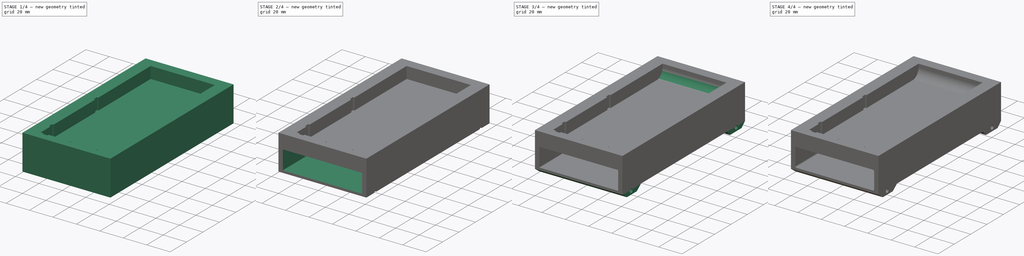
[diagram: build sequence overview — one tinted view per stage of 4, left to right]
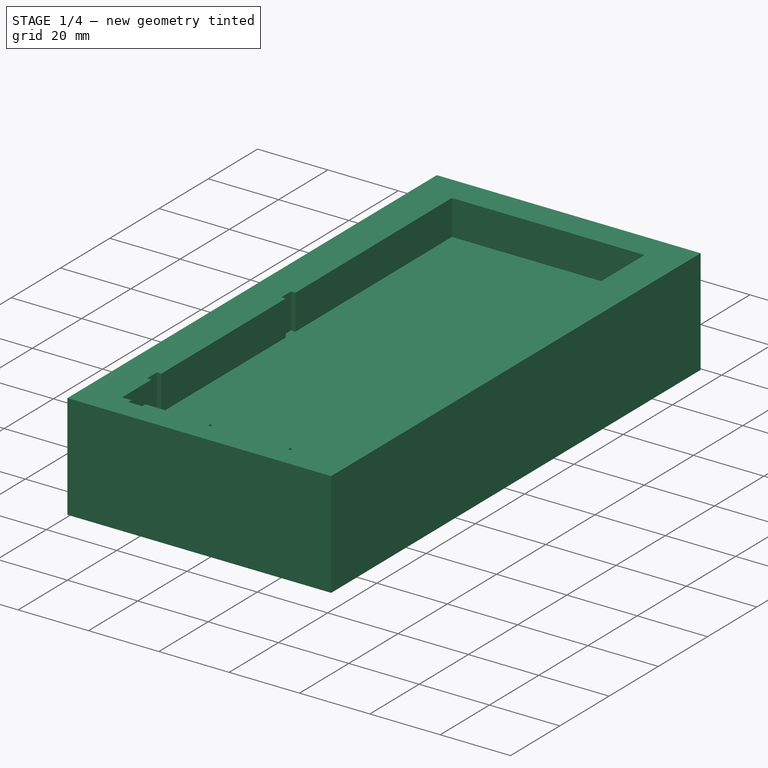
[diagram: stage 1 of 4 — iso view after this stage's code; geometry added in this stage tinted green]
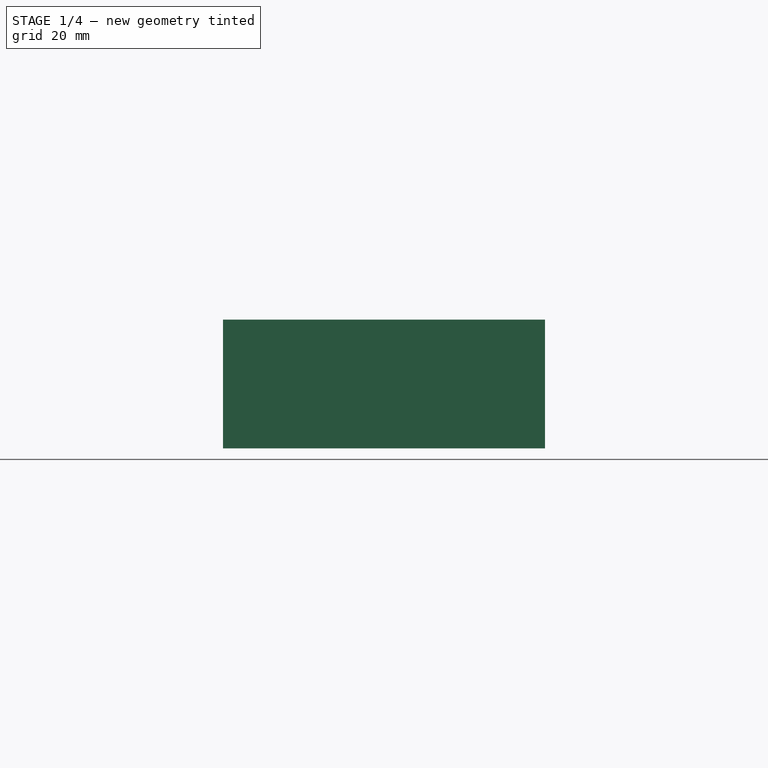
[diagram: stage 1 of 4 — front view after this stage's code; geometry added in this stage tinted green]
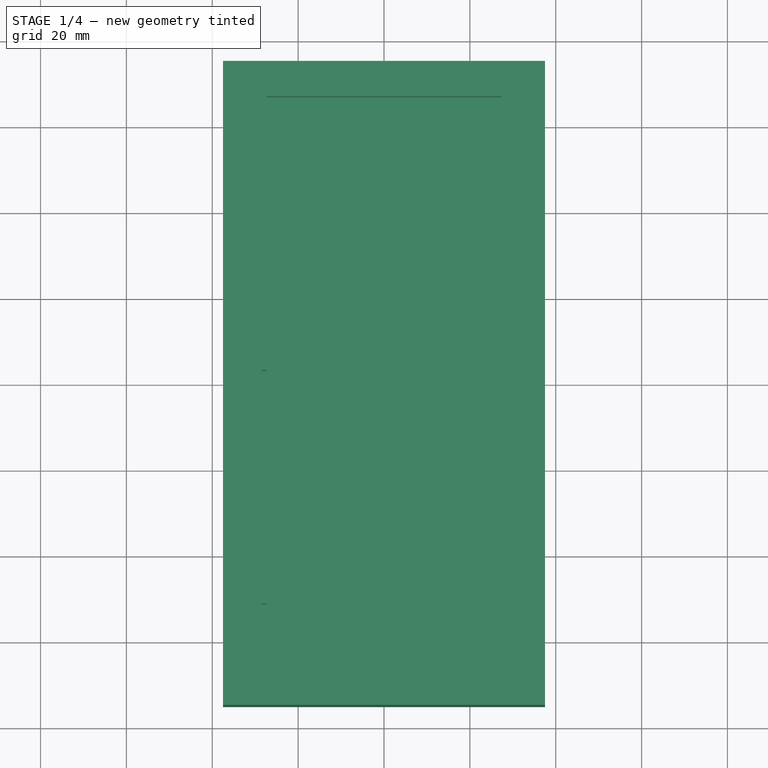
[diagram: stage 1 of 4 — top view after this stage's code; geometry added in this stage tinted green]
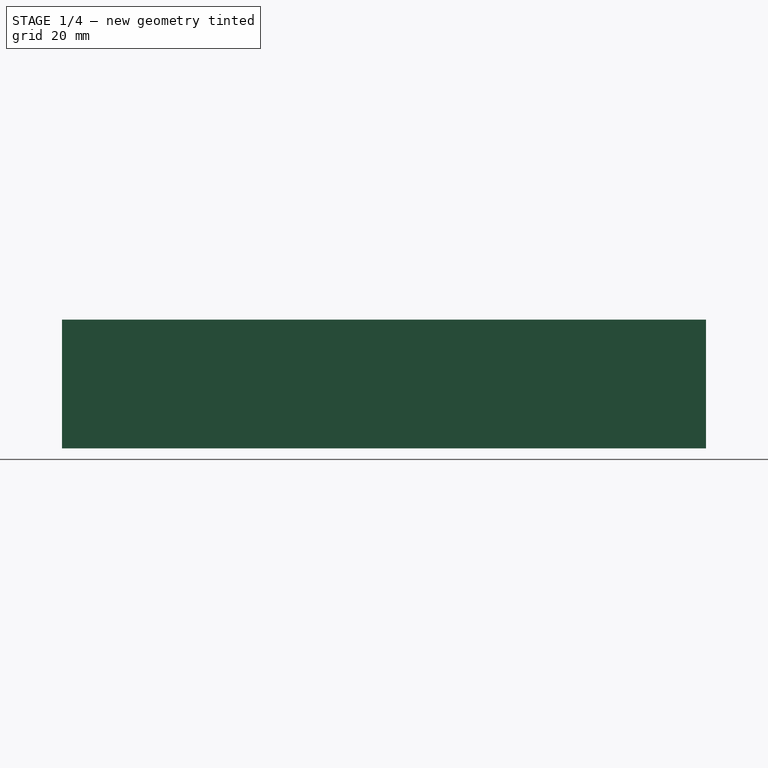
[diagram: stage 1 of 4 — right view after this stage's code; geometry added in this stage tinted green]
FCSTD DOCUMENT  (FreeCAD 0.20R29603 (Git))
Label: collision_cart
License: All rights reserved
LicenseURL: http://en.wikipedia.org/wiki/All_rights_reserved
objects: Sketcher::SketchObject×5, PartDesign::Pocket×4, TechDraw::DrawSVGTemplate×3, PartDesign::Fillet×3, TechDraw::DrawViewPart×3, TechDraw::DrawPage×3, PartDesign::Pad×2, PartDesign::Body×1, App::Part×1
note: 24 computed .brp shape members not serialized (recipe doc carries the construction recipe); baked Part::Feature solids carry a one-line shape summary decoded from their .brp

FEATURE [Sketcher::SketchObject] Sketch
  FullyConstrained = true
  MapMode = 5
  Support = -> [XY_Plane001]
  sketch-geometry (4):
    g0: LineSegment StartX=-37.5 StartY=75 StartZ=0 EndX=37.5 EndY=75 EndZ=0
    g1: LineSegment StartX=37.5 StartY=75 StartZ=0 EndX=37.5 EndY=-75 EndZ=0
    g2: LineSegment StartX=37.5 StartY=-75 StartZ=0 EndX=-37.5 EndY=-75 EndZ=0
    g3: LineSegment StartX=-37.5 StartY=-75 StartZ=0 EndX=-37.5 EndY=75 EndZ=0
  constraints (11):
    c: Coincident(g0,g1)
    c: Coincident(g1,g2)
    c: Coincident(g2,g3)
    c: Coincident(g3,g0)
    c: Horizontal(g0)
    c: Horizontal(g2)
    c: Vertical(g1)
    c: Vertical(g3)
    c: DistanceX(g0,g0) = 75
    c: DistanceY(g1,g1) = 150
    c: Symmetric(g2,g0,g-1)
FEATURE [PartDesign::Pad] Pad
  Direction = (0,0,1)
  Length = 30
  Length2 = 10
  Profile = -> Sketch
  ReferenceAxis = -> Sketch [N_Axis]
  Type = 0
FEATURE [Sketcher::SketchObject] Sketch001
  FullyConstrained = false
  MapMode = 5
  Placement = pos=(0,0,30) rot=(0,0,1;0rad)
  Support = -> [Pad]
  sketch-geometry (24):
    g0: LineSegment StartX=-27.4 StartY=66.7 StartZ=0 EndX=27.4 EndY=66.7 EndZ=0
    g1: LineSegment StartX=27.4 StartY=66.7 StartZ=0 EndX=27.4 EndY=-67.395 EndZ=0
    g2: LineSegment StartX=27.4 StartY=-67.395 StartZ=0 EndX=24.7 EndY=-67.395 EndZ=0
    g3: LineSegment StartX=-27.3 StartY=-67.395 StartZ=0 EndX=-27.3 EndY=-55.395 EndZ=0
    g4: LineSegment StartX=-20.7 StartY=-67.395 StartZ=0 EndX=-20.7 EndY=-68.645 EndZ=0
    g5: LineSegment StartX=-20.7 StartY=-68.645 StartZ=0 EndX=-24.6 EndY=-68.645 EndZ=0
    g6: LineSegment StartX=-24.6 StartY=-68.645 StartZ=0 EndX=-24.6 EndY=-67.395 EndZ=0
    g7: LineSegment StartX=1.95 StartY=-67.395 StartZ=0 EndX=1.95 EndY=-68.645 EndZ=0
    g8: LineSegment StartX=1.95 StartY=-68.645 StartZ=0 EndX=-1.95 EndY=-68.645 EndZ=0
    g9: LineSegment StartX=-1.95 StartY=-68.645 StartZ=0 EndX=-1.95 EndY=-67.395 EndZ=0
    g10: LineSegment StartX=24.7 StartY=-67.395 StartZ=0 EndX=24.7 EndY=-68.645 EndZ=0
    g11: LineSegment StartX=24.7 StartY=-68.645 StartZ=0 EndX=20.8 EndY=-68.645 EndZ=0
    g12: LineSegment StartX=20.8 StartY=-68.645 StartZ=0 EndX=20.8 EndY=-67.395 EndZ=0
    g13: LineSegment StartX=20.8 StartY=-67.395 StartZ=0 EndX=1.95 EndY=-67.395 EndZ=0
    g14: LineSegment StartX=-27.3 StartY=-67.395 StartZ=0 EndX=-24.6 EndY=-67.395 EndZ=0
    g15: LineSegment StartX=-20.7 StartY=-67.395 StartZ=0 EndX=-1.95 EndY=-67.395 EndZ=0
    g16: LineSegment StartX=-27.3 StartY=-55.395 StartZ=0 EndX=-28.55 EndY=-55.395 EndZ=0
    g17: LineSegment StartX=-28.55 StartY=-55.395 StartZ=0 EndX=-28.55 EndY=-51.495 EndZ=0
    g18: LineSegment StartX=-28.55 StartY=-51.495 StartZ=0 EndX=-27.3 EndY=-51.495 EndZ=0
    g19: LineSegment StartX=-27.3 StartY=-51.495 StartZ=0 EndX=-27.3 EndY=-0.89504 EndZ=0
    g20: LineSegment StartX=-27.3 StartY=-0.89504 StartZ=0 EndX=-28.55 EndY=-0.89504 EndZ=0
    g21: LineSegment StartX=-28.55 StartY=-0.89504 StartZ=0 EndX=-28.55 EndY=3.00496 EndZ=0
    g22: LineSegment StartX=-28.55 StartY=3.00496 StartZ=0 EndX=-27.3 EndY=3.00496 EndZ=0
    g23: LineSegment StartX=-27.3 StartY=3.00496 StartZ=0 EndX=-27.4 EndY=66.7 EndZ=0
  constraints (68):
    c: Coincident(g0,g1)
    c: Coincident(g1,g2)
    c: Horizontal(g2)
    c: Vertical(g1)
    c: Vertical(g3)
    c: DistanceX(g3,g2) = 54.7
    c: Coincident(g4,g5)
    c: Coincident(g5,g6)
    c: Horizontal(g5)
    c: Vertical(g4)
    c: Vertical(g6)
    c: Coincident(g7,g8)
    c: Coincident(g8,g9)
    c: Vertical(g7)
    c: Vertical(g9)
    c: Coincident(g10,g11)
    c: Coincident(g11,g12)
    c: Horizontal(g11)
    c: Vertical(g10)
    c: Vertical(g12)
    c: DistanceX(g5,g5) = 3.9
    c: DistanceX(g8,g8) = 3.9
    c: DistanceX(g11,g11) = 3.9
    c: Symmetric(g0,g0,g-2)
    c: DistanceY(g4,g4) = 1.25
    c: DistanceY(g7,g7) = 1.25
    c: DistanceY(g12,g12) = 1.25
    c: Symmetric(g8,g7,g-2)
    c: DistanceX(g3,g6) = 2.7
    c: DistanceX(g2,g2) = 2.7
    c: Coincident(g10,g2)
    c: Coincident(g13,g12)
    c: Horizontal(g13)
    c: Coincident(g14,g3)
    c: Coincident(g14,g6)
    c: Horizontal(g14)
    c: Coincident(g15,g4)
    c: Coincident(g15,g9)
    c: Horizontal(g15)
    c: Equal(g6,g4)
    c: Equal(g12,g10)
    c: Equal(g9,g7)
    c: Coincident(g7,g13)
    c: Coincident(g16,g17)
    c: Coincident(g17,g18)
    c: Horizontal(g16)
    c: Horizontal(g18)
    c: Vertical(g17)
    c: Coincident(g3,g16)
    c: DistanceX(g16,g16) = 1.25
    c: DistanceY(g17,g17) = 3.9
    c: DistanceX(g0,g0) = 54.8
    c: DistanceY(g3,g3) = 12
    c: Equal(g16,g18)
    c: Coincident(g19,g18)
    c: Vertical(g19)
    c: DistanceY(g19,g19) = 50.6
    c: Coincident(g20,g21)
    c: Coincident(g21,g22)
    c: Horizontal(g20)
    c: Horizontal(g22)
    c: Vertical(g21)
    c: Coincident(g20,g19)
    c: DistanceX(g20,g20) = 1.25
    c: DistanceY(g21,g21) = 3.9
    c: Equal(g20,g22)
    c: Coincident(g23,g22)
    c: Coincident(g23,g0)
FEATURE [PartDesign::Pocket] Pocket
  BaseFeature = -> Pad
  Direction = (0,0,-1)
  Length = 10
  Length2 = 5
  Profile = -> Sketch001
  ReferenceAxis = -> Sketch001 [N_Axis]
  Type = 0
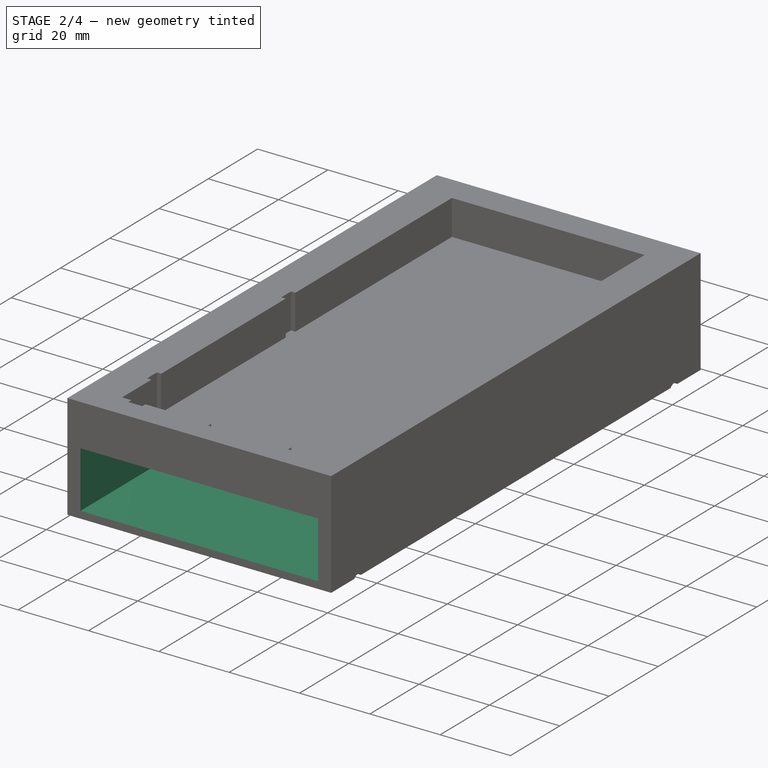
[diagram: stage 2 of 4 — iso view after this stage's code; geometry added in this stage tinted green]
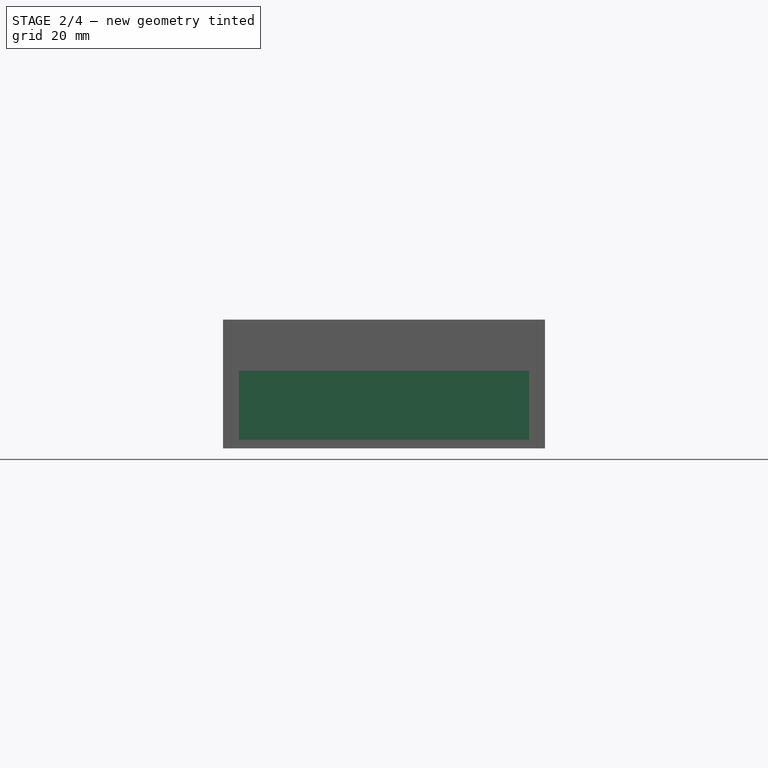
[diagram: stage 2 of 4 — front view after this stage's code; geometry added in this stage tinted green]
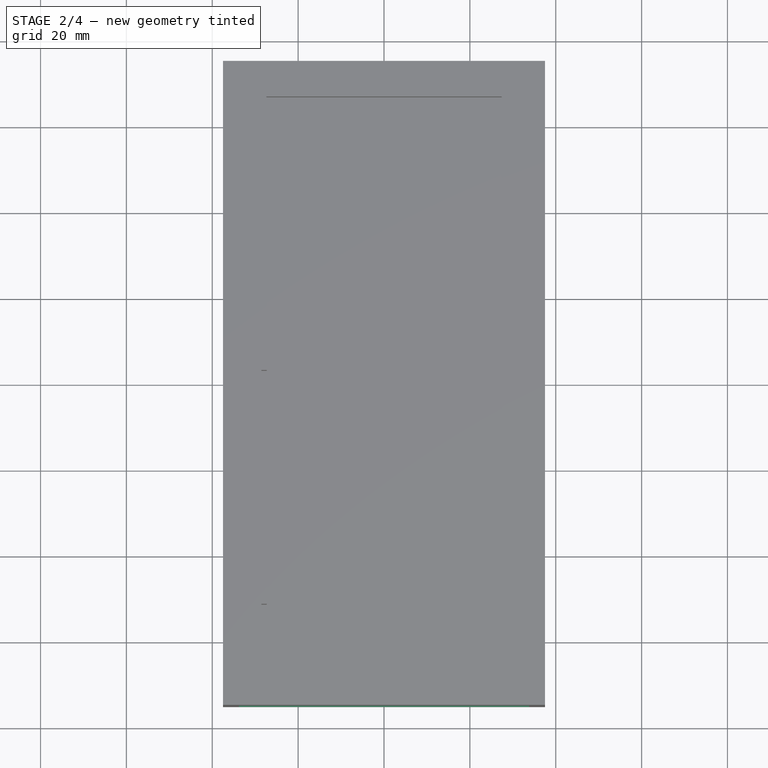
[diagram: stage 2 of 4 — top view after this stage's code; geometry added in this stage tinted green]
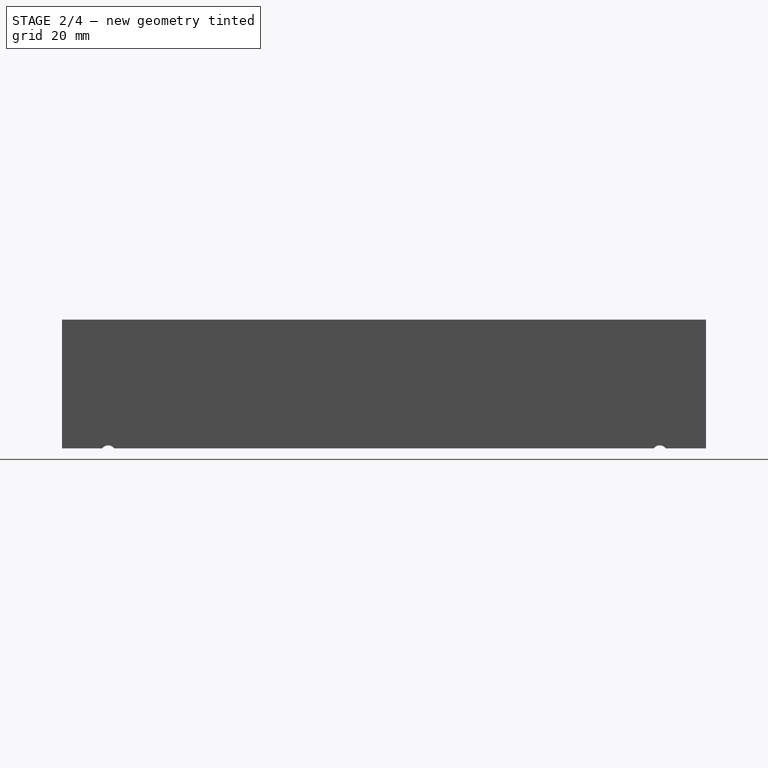
[diagram: stage 2 of 4 — right view after this stage's code; geometry added in this stage tinted green]
FEATURE [TechDraw::DrawSVGTemplate] Template
  Height = 297
  Orientation = 0
  Width = 210
FEATURE [TechDraw::DrawSVGTemplate] Template001
  Height = 297
  Orientation = 0
  Width = 210
FEATURE [TechDraw::DrawSVGTemplate] Template002
  Height = 215.9
  Orientation = 1
  Width = 279.4
FEATURE [Sketcher::SketchObject] Sketch002
  FullyConstrained = true
  MapMode = 5
  Placement = pos=(0,-75,0) rot=(1,0,0;1.5708rad)
  Support = -> [Pocket]
  sketch-geometry (4):
    g0: LineSegment StartX=-33.8 StartY=18.1 StartZ=0 EndX=33.8 EndY=18.1 EndZ=0
    g1: LineSegment StartX=33.8 StartY=18.1 StartZ=0 EndX=33.8 EndY=2 EndZ=0
    g2: LineSegment StartX=33.8 StartY=2 StartZ=0 EndX=-33.8 EndY=2 EndZ=0
    g3: LineSegment StartX=-33.8 StartY=2 StartZ=0 EndX=-33.8 EndY=18.1 EndZ=0
  constraints (11):
    c: Coincident(g0,g1)
    c: Coincident(g1,g2)
    c: Coincident(g2,g3)
    c: Coincident(g3,g0)
    c: Horizontal(g2)
    c: Vertical(g1)
    c: Vertical(g3)
    c: Symmetric(g0,g0,g-2)
    c: DistanceY(g1,g1) = 16.1
    c: DistanceY(g-1,g1) = 2
    c: DistanceX(g0,g0) = 67.6
FEATURE [PartDesign::Pocket] Pocket001
  BaseFeature = -> Pocket
  Direction = (0,1,-2e-16)
  Length = 138
  Length2 = 5
  Profile = -> Sketch002
  ReferenceAxis = -> Sketch002 [N_Axis]
  Type = 0
FEATURE [Sketcher::SketchObject] Sketch003
  FullyConstrained = false
  MapMode = 5
  Placement = pos=(37.5,0,0) rot=(0.57735,0.57735,0.57735;2.0944rad)
  Support = -> [Pocket001]
  sketch-geometry (2):
    g0: Circle CenterX=64.2402 CenterY=-1 CenterZ=0 NormalX=0 NormalY=0 NormalZ=1 AngleXU=0 Radius=1.7
    g1: Circle CenterX=-64.2402 CenterY=-1 CenterZ=0 NormalX=0 NormalY=0 NormalZ=1 AngleXU=0 Radius=1.7
  constraints (4):
    c: Diameter(g0) = 3.4
    c: Diameter(g1) = 3.4
    c: DistanceY(g-1,g0) = -1
    c: Symmetric(g1,g0,g-2)
FEATURE [PartDesign::Pocket] Pocket002
  BaseFeature = -> Pocket001
  Direction = (-1,0,0)
  Length = 200
  Length2 = 5
  Profile = -> Sketch003
  ReferenceAxis = -> Sketch003 [N_Axis]
  Type = 0
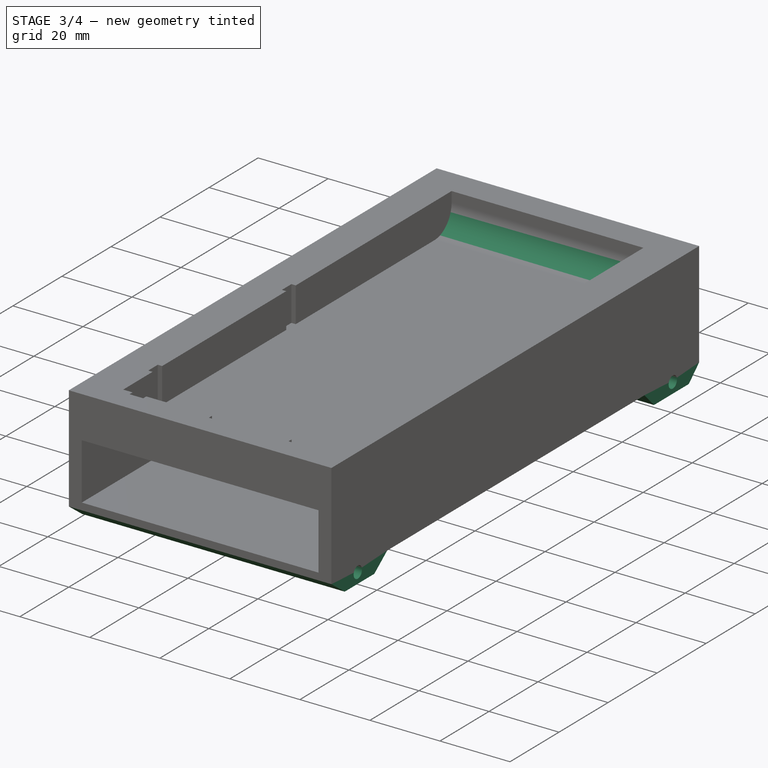
[diagram: stage 3 of 4 — iso view after this stage's code; geometry added in this stage tinted green]
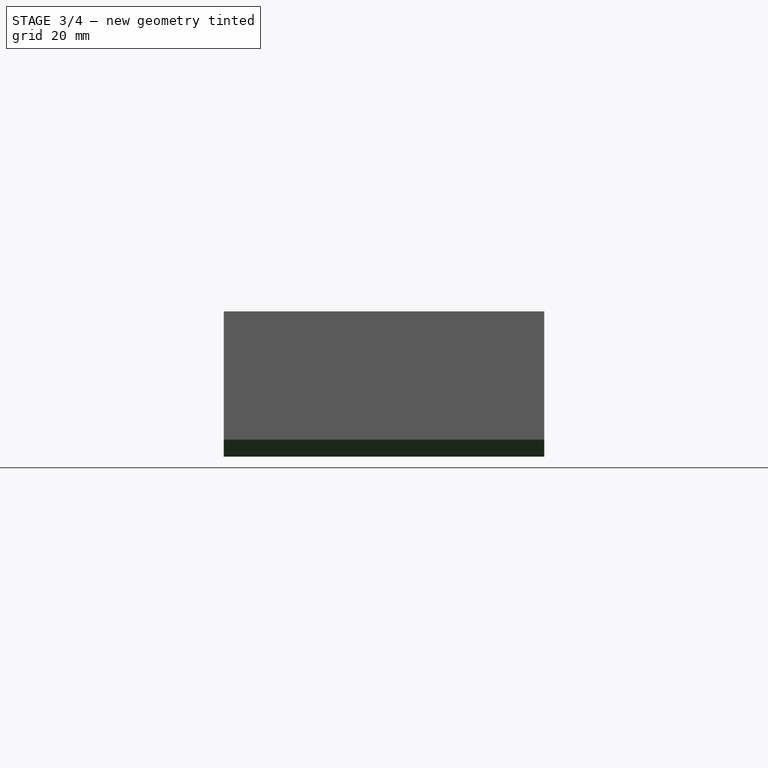
[diagram: stage 3 of 4 — front view after this stage's code; geometry added in this stage tinted green]
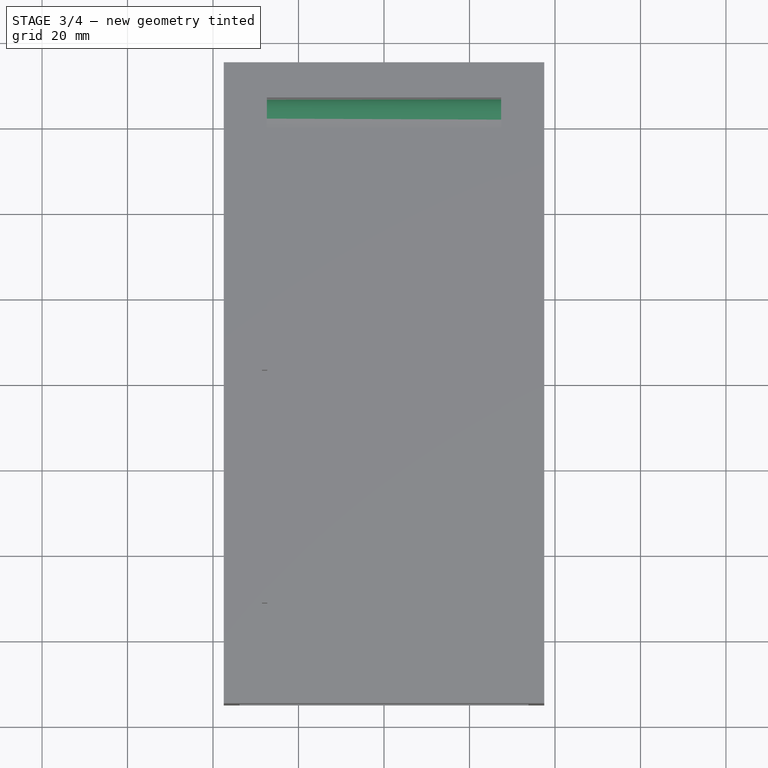
[diagram: stage 3 of 4 — top view after this stage's code; geometry added in this stage tinted green]
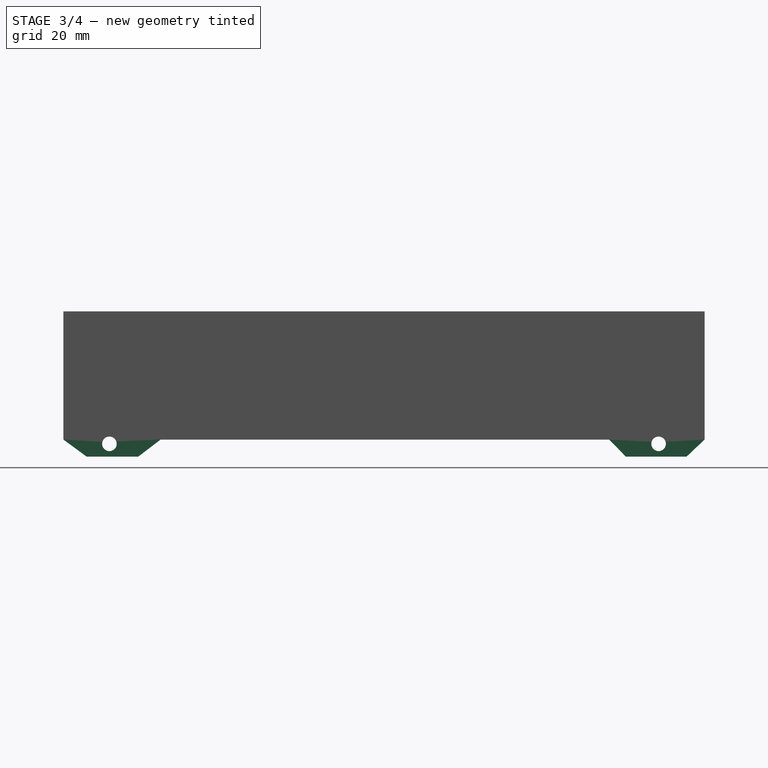
[diagram: stage 3 of 4 — right view after this stage's code; geometry added in this stage tinted green]
FEATURE [Sketcher::SketchObject] Sketch004
  ExternalGeometry = -> [Pocket002]
  FullyConstrained = false
  MapMode = 5
  Placement = pos=(37.5,0,0) rot=(0.57735,0.57735,0.57735;2.0944rad)
  Support = -> [Pocket002]
  sketch-geometry (8):
    g0: LineSegment StartX=-75 StartY=0 StartZ=0 EndX=-69.5643 EndY=-4 EndZ=0
    g1: LineSegment StartX=-69.5643 StartY=-4 StartZ=0 EndX=-57.5024 EndY=-4 EndZ=0
    g2: LineSegment StartX=-57.5024 StartY=-4 StartZ=0 EndX=-52.2646 EndY=-4e-16 EndZ=0
    g3: LineSegment StartX=-52.2646 StartY=-4e-16 StartZ=0 EndX=-75 EndY=0 EndZ=0
    g4: LineSegment StartX=75 StartY=0 StartZ=0 EndX=70.7702 EndY=-4 EndZ=0
    g5: LineSegment StartX=70.7702 StartY=-4 StartZ=0 EndX=56.5795 EndY=-4 EndZ=0
    g6: LineSegment StartX=56.5795 StartY=-4 StartZ=0 EndX=52.6816 EndY=0 EndZ=0
    g7: LineSegment StartX=52.6816 StartY=0 StartZ=0 EndX=75 EndY=0 EndZ=0
  constraints (16):
    c: Coincident(g0,g-4)
    c: Coincident(g0,g1)
    c: Horizontal(g1)
    c: Coincident(g1,g2)
    c: PointOnObject(g2,g-5)
    c: Coincident(g2,g3)
    c: Coincident(g3,g0)
    c: DistanceY(g1,g2) = 4
    c: Coincident(g-7,g4)
    c: Coincident(g4,g5)
    c: Horizontal(g5)
    c: Coincident(g5,g6)
    c: PointOnObject(g6,g-5)
    c: Coincident(g6,g7)
    c: Coincident(g7,g4)
    c: DistanceY(g4,g4) = 4
FEATURE [PartDesign::Pad] Pad002
  BaseFeature = -> Pocket001
  Direction = (1,0,0)
  Length = 75
  Length2 = 10
  Profile = -> Sketch004
  ReferenceAxis = -> Sketch004 [N_Axis]
  Reversed = true
  Type = 0
FEATURE [PartDesign::Pocket] Pocket003
  BaseFeature = -> Pad002
  Direction = (-1,0,0)
  Length = 1000
  Length2 = 5
  Midplane = true
  Profile = -> Sketch003
  ReferenceAxis = -> Sketch003 [N_Axis]
  Type = 0
FEATURE [PartDesign::Fillet] Fillet
  Base = -> Pocket003 [Edge109]
  BaseFeature = -> Pocket003
  Radius = 7
  SupportTransform = false
  UseAllEdges = false
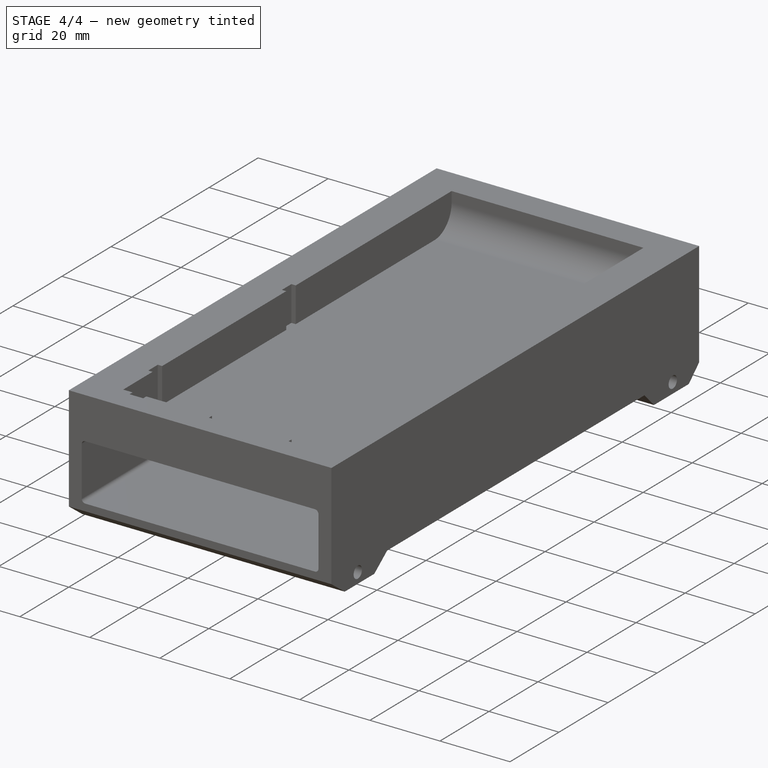
[diagram: stage 4 of 4 — iso view after this stage's code; geometry added in this stage tinted green]
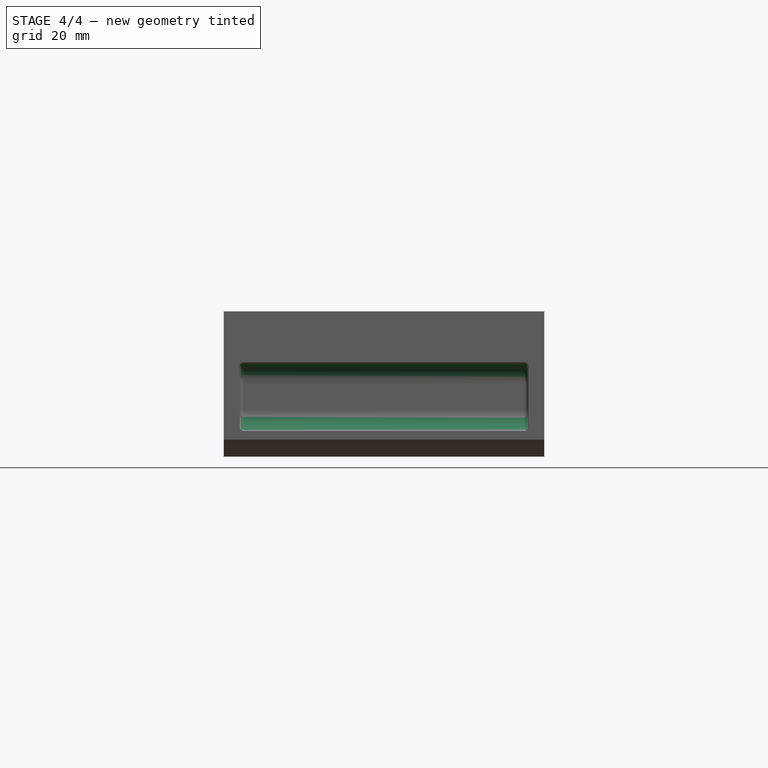
[diagram: stage 4 of 4 — front view after this stage's code; geometry added in this stage tinted green]
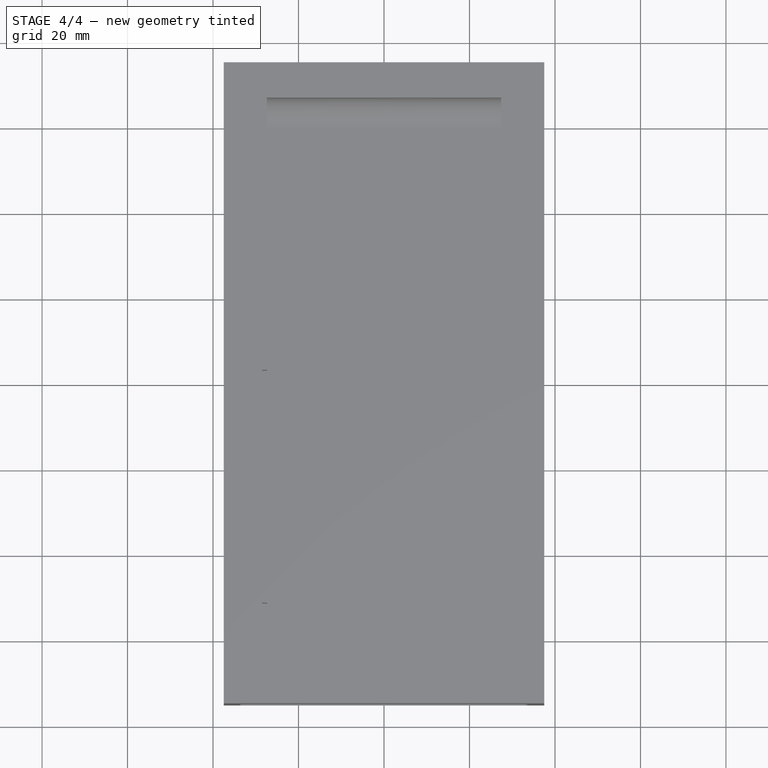
[diagram: stage 4 of 4 — top view after this stage's code; geometry added in this stage tinted green]
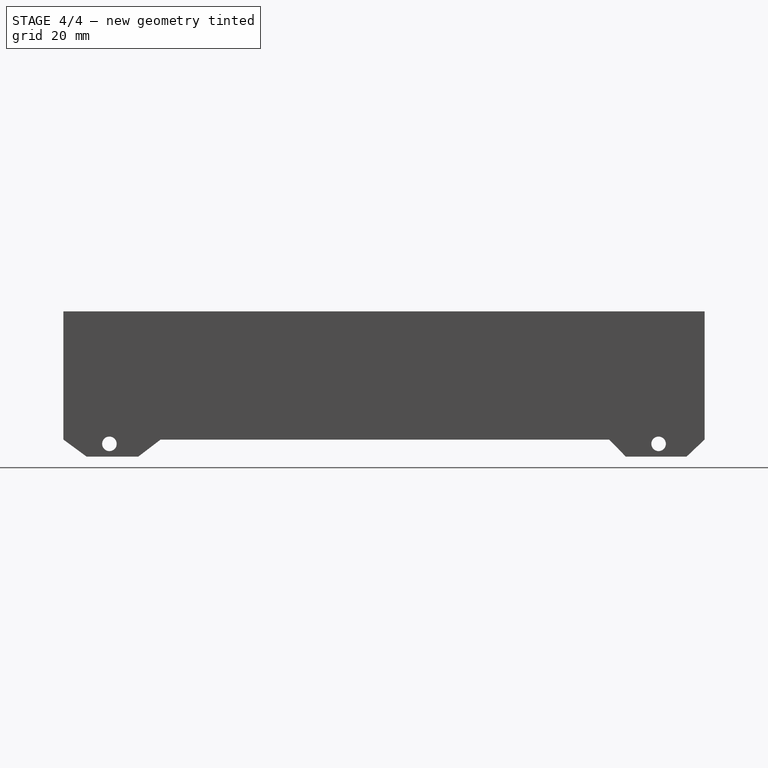
[diagram: stage 4 of 4 — right view after this stage's code; geometry added in this stage tinted green]
FEATURE [PartDesign::Fillet] Fillet001
  Base = -> Fillet [Edge134,Edge137]
  BaseFeature = -> Fillet
  Radius = 5
  SupportTransform = false
  UseAllEdges = false
FEATURE [PartDesign::Fillet] Fillet002
  Base = -> Fillet001 [Edge4,Edge18]
  BaseFeature = -> Fillet001
  Radius = 1
  SupportTransform = false
  UseAllEdges = false
FEATURE [PartDesign::Body] Body
  Group = -> [Sketch,Pad,Sketch001,Pocket,Sketch002,Pocket001,Sketch003,Sketch004,Pad002,Pocket003,Fillet,Fillet001,Fillet002]
  Origin = -> Origin001
  Tip = -> Fillet002
FEATURE [App::Part] Part
  Group = -> [Body]
  Origin = -> Origin
FEATURE [TechDraw::DrawViewPart] View
  CoarseView = false
  Direction = (0,0,1)
  Focus = 100
  HardHidden = false
  IsoCount = 0
  IsoHidden = false
  IsoVisible = false
  LockPosition = false
  Perspective = false
  Rotation = 0
  ScaleType = 0
  SeamHidden = false
  SeamVisible = true
  SmoothHidden = false
  SmoothVisible = true
  Source = -> [Body]
  X = 105
  XDirection = (1,0,0)
  Y = 148.5
FEATURE [TechDraw::DrawPage] Page
  KeepUpdated = true
  NextBalloonIndex = 1
  ProjectionType = 0
  Template = -> Template
  Views = -> [View]
FEATURE [TechDraw::DrawViewPart] View001
  CoarseView = false
  Direction = (0,0,1)
  Focus = 100
  HardHidden = false
  IsoCount = 0
  IsoHidden = false
  IsoVisible = false
  LockPosition = false
  Perspective = false
  Rotation = 0
  ScaleType = 0
  SeamHidden = false
  SeamVisible = true
  SmoothHidden = false
  SmoothVisible = true
  Source = -> [Body]
  X = 105
  XDirection = (1,0,0)
  Y = 148.5
FEATURE [TechDraw::DrawPage] Page001
  KeepUpdated = true
  NextBalloonIndex = 1
  ProjectionType = 0
  Template = -> Template001
  Views = -> [View001]
FEATURE [TechDraw::DrawViewPart] View002
  CoarseView = false
  Direction = (0,0,1)
  Focus = 100
  HardHidden = false
  IsoCount = 0
  IsoHidden = false
  IsoVisible = false
  LockPosition = false
  Perspective = false
  Rotation = 0
  ScaleType = 0
  SeamHidden = false
  SeamVisible = true
  SmoothHidden = false
  SmoothVisible = true
  Source = -> [Body]
  X = 139.7
  XDirection = (1,0,0)
  Y = 107.95
FEATURE [TechDraw::DrawPage] Page002
  KeepUpdated = true
  NextBalloonIndex = 1
  ProjectionType = 0
  Template = -> Template002
  Views = -> [View002]
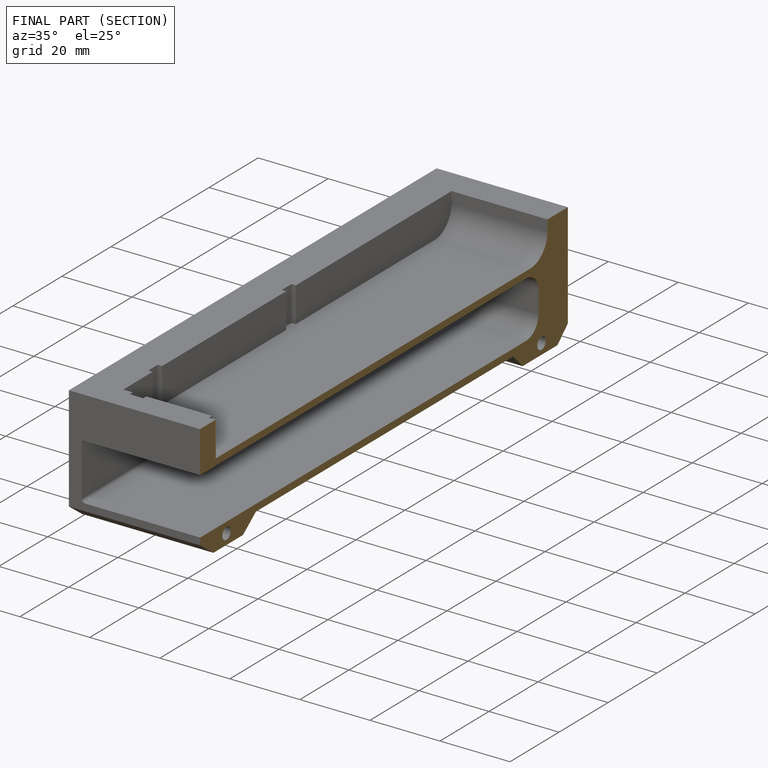
[diagram: finished part — half-section view (interior)]
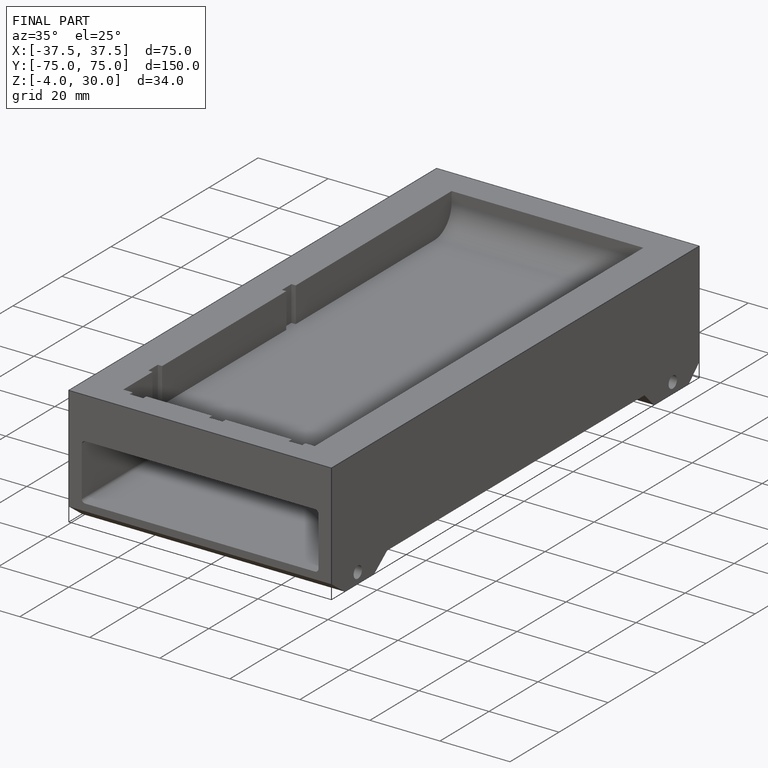
[diagram: finished part — iso view with bounding-box wireframe]
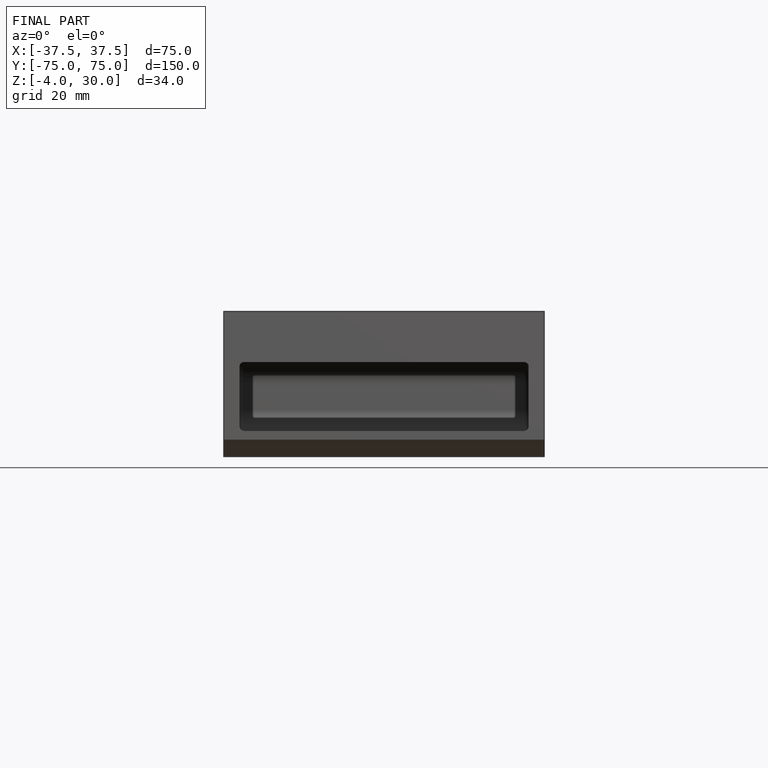
[diagram: finished part — front view with bounding-box wireframe]
